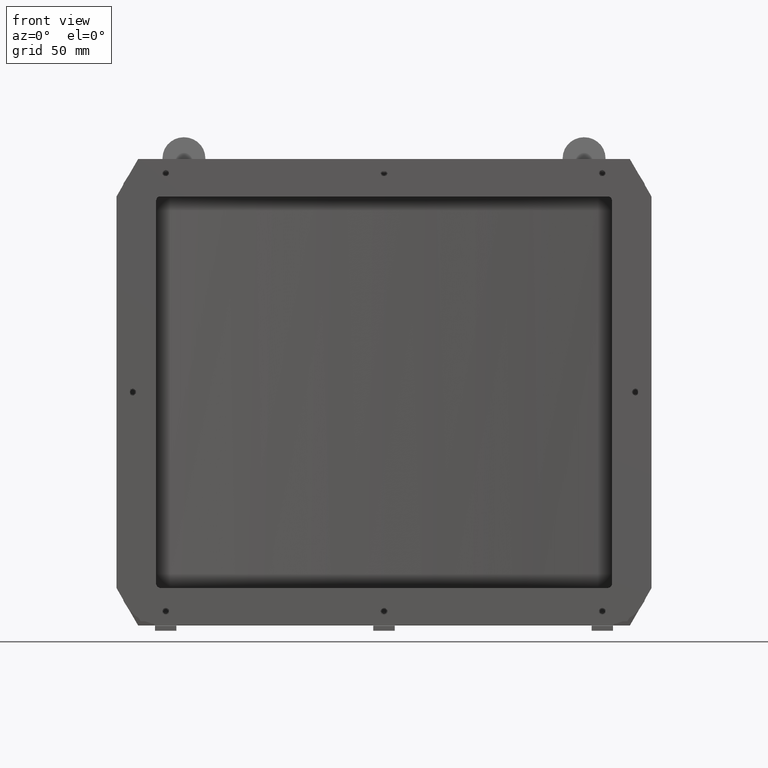
[diagram: clean part render]
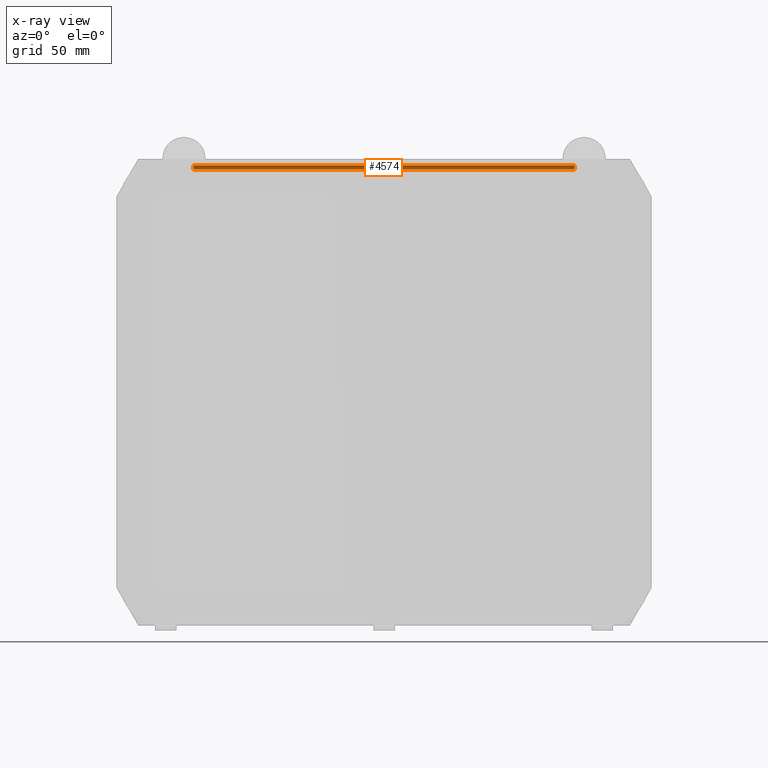
[diagram: x-ray — body ghosted, one internal face saturated and labeled with its STEP entity id]
A machine part, front view, then the same camera in x-ray: the body is ghosted and one INTERNAL B-rep face — a face not visible from any outside direction — is saturated and labeled: STEP entity #4574.
In plain terms, the highlighted cylindrical surface (edge-blend (fillet) strip) has radius 2 mm, axis along (1, 0, -0).
Its self-contained STEP definition (entity closure, byte-faithful):
#6 = CARTESIAN_POINT ( 'NONE',  ( -89.00000000000000000, 6.499999999999997300, 106.0000000000000400 ) ) ;
#7 = CARTESIAN_POINT ( 'NONE',  ( 89.00000000000001400, 6.499999999999997300, 105.9999999999999900 ) ) ;
#8 = DIRECTION ( 'NONE',  ( -1.000000000000000000, -0.0000000000000000000, 2.581914010756178200E-016 ) ) ;
#9 = VECTOR ( 'NONE', #8, 1000.000000000000000 ) ;
#10 = CARTESIAN_POINT ( 'NONE',  ( -107.5000000000000000, 6.499999999999997300, 106.0000000000000400 ) ) ;
#11 = LINE ( 'NONE', #10, #9 ) ;
#66 = CIRCLE ( 'NONE', #70, 2.000000000000001800 ) ;
#67 = DIRECTION ( 'NONE',  ( 0.0000000000000000000, 0.0000000000000000000, -1.000000000000000000 ) ) ;
#68 = DIRECTION ( 'NONE',  ( -1.000000000000000000, -0.0000000000000000000, -0.0000000000000000000 ) ) ;
#69 = CARTESIAN_POINT ( 'NONE',  ( 89.00000000000001400, 6.499999999999997300, 103.9999999999999900 ) ) ;
#70 = AXIS2_PLACEMENT_3D ( 'NONE', #69, #68, #67 ) ;
#120 = DIRECTION ( 'NONE',  ( 0.0000000000000000000, 0.0000000000000000000, -1.000000000000000000 ) ) ;
#121 = DIRECTION ( 'NONE',  ( 1.000000000000000000, 0.0000000000000000000, -2.581914010756178200E-016 ) ) ;
#122 = CARTESIAN_POINT ( 'NONE',  ( -107.4999999999999400, 6.499999999999997300, 104.0000000000000400 ) ) ;
#123 = AXIS2_PLACEMENT_3D ( 'NONE', #122, #121, #120 ) ;
#128 = CYLINDRICAL_SURFACE ( 'NONE', #123, 2.000000000000001800 ) ;
#129 = FACE_OUTER_BOUND ( 'NONE', #4499, .T. ) ;
#130 = DIRECTION ( 'NONE',  ( 1.000000000000000000, 0.0000000000000000000, -2.581914010756178200E-016 ) ) ;
#131 = VECTOR ( 'NONE', #130, 1000.000000000000000 ) ;
#132 = CARTESIAN_POINT ( 'NONE',  ( -107.4999999999999400, 8.499999999999996400, 104.0000000000000400 ) ) ;
#133 = LINE ( 'NONE', #132, #131 ) ;
#134 = CARTESIAN_POINT ( 'NONE',  ( -89.00000000000000000, 8.499999999999996400, 104.0000000000000400 ) ) ;
#2948 = DIRECTION ( 'NONE',  ( 0.0000000000000000000, 0.0000000000000000000, 1.000000000000000000 ) ) ;
#2949 = DIRECTION ( 'NONE',  ( 1.000000000000000000, -0.0000000000000000000, -0.0000000000000000000 ) ) ;
#2950 = CARTESIAN_POINT ( 'NONE',  ( -89.00000000000000000, 6.499999999999997300, 104.0000000000000400 ) ) ;
#2951 = AXIS2_PLACEMENT_3D ( 'NONE', #2950, #2949, #2948 ) ;
#2952 = CIRCLE ( 'NONE', #2951, 2.000000000000001800 ) ;
#4413 = VERTEX_POINT ( 'NONE', #7241 ) ;
#4499 = EDGE_LOOP ( 'NONE', ( #4500, #4530, #4533, #4614 ) ) ;
#4500 = ORIENTED_EDGE ( 'NONE', *, *, #4501, .F. ) ;
#4501 = EDGE_CURVE ( 'NONE', #4502, #4503, #11, .T. ) ;
#4502 = VERTEX_POINT ( 'NONE', #7 ) ;
#4503 = VERTEX_POINT ( 'NONE', #6 ) ;
#4530 = ORIENTED_EDGE ( 'NONE', *, *, #4531, .T. ) ;
#4531 = EDGE_CURVE ( 'NONE', #4502, #4413, #66, .T. ) ;
#4533 = ORIENTED_EDGE ( 'NONE', *, *, #4573, .F. ) ;
#4571 = VERTEX_POINT ( 'NONE', #134 ) ;
#4573 = EDGE_CURVE ( 'NONE', #4571, #4413, #133, .T. ) ;
#4574 = ADVANCED_FACE ( 'NONE', ( #129 ), #128, .T. ) ;
#4612 = EDGE_CURVE ( 'NONE', #4571, #4503, #2952, .T. ) ;
#4614 = ORIENTED_EDGE ( 'NONE', *, *, #4612, .T. ) ;
#7241 = CARTESIAN_POINT ( 'NONE',  ( 89.00000000000001400, 8.499999999999996400, 103.9999999999999900 ) ) ;